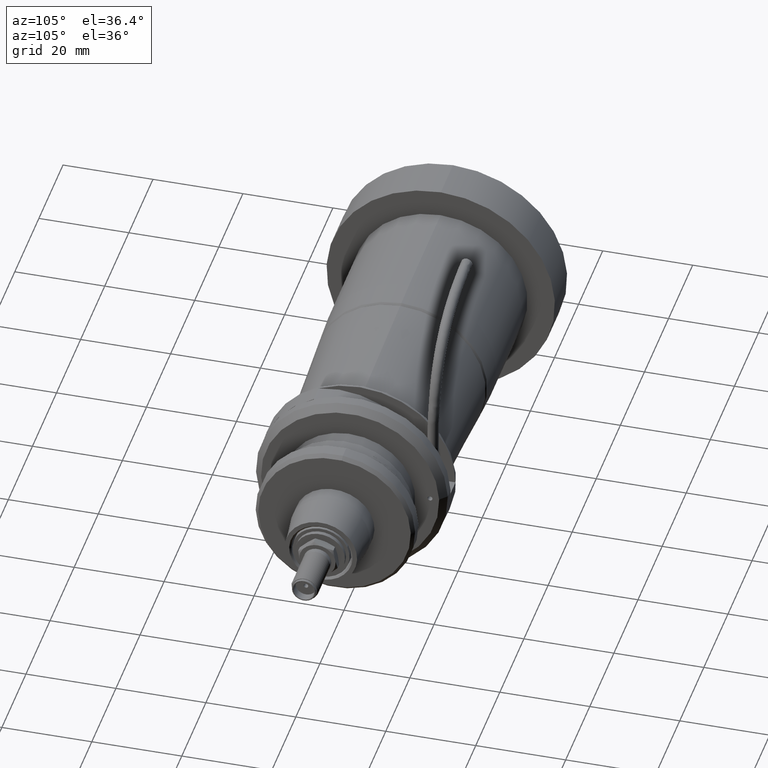
[diagram: clean part render]
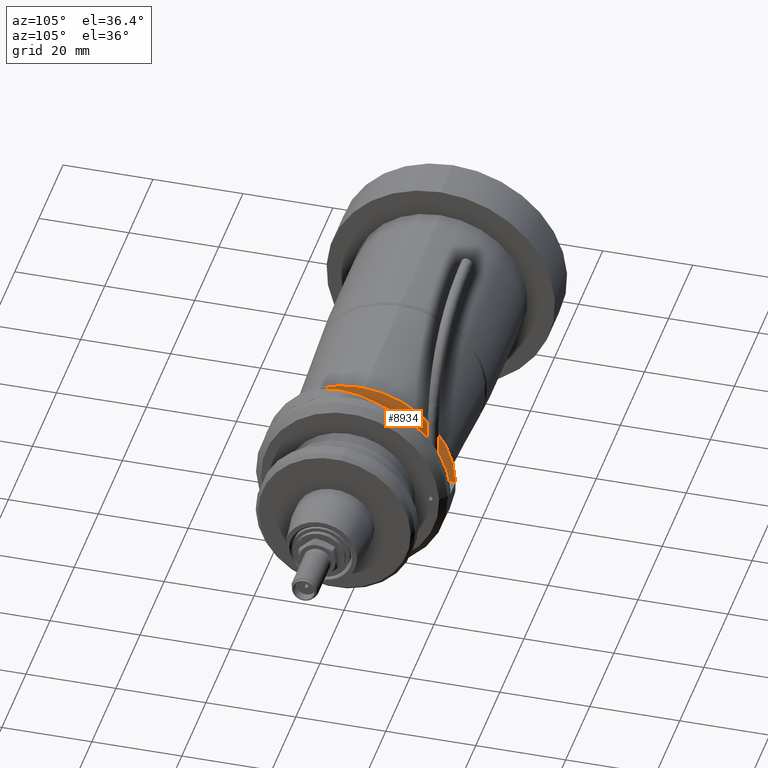
[diagram: same view with one face highlighted and labeled with its STEP entity id]
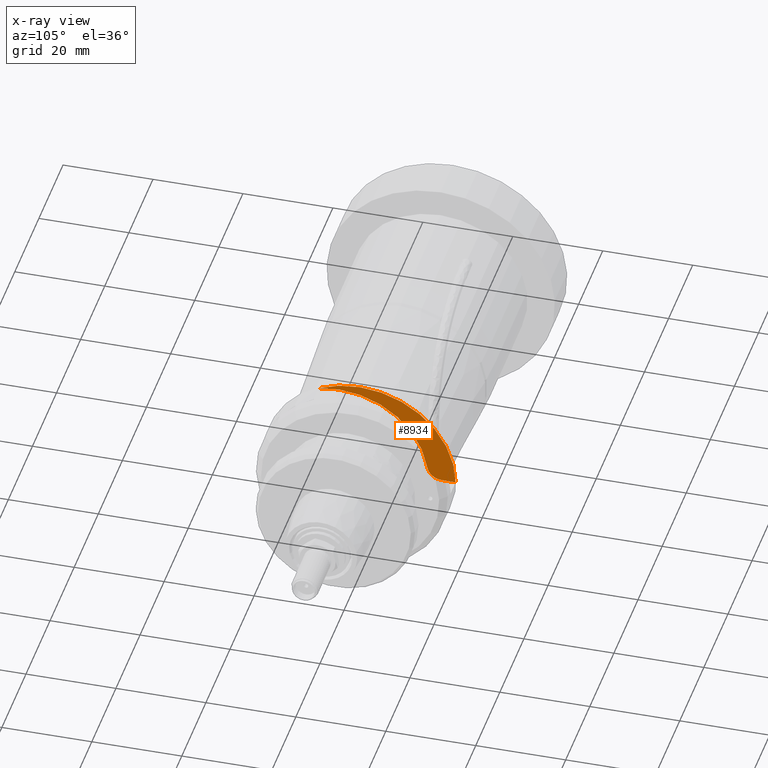
[diagram: x-ray of the same camera — body ghosted, the highlighted face saturated]
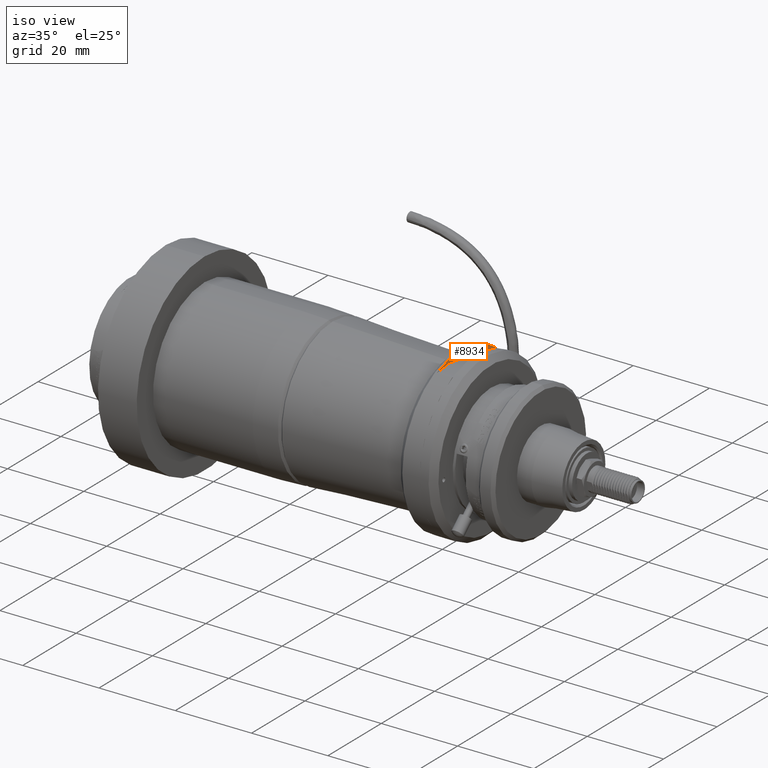
[diagram: same view with one face highlighted and labeled with its STEP entity id]
A machine part, auxiliary view. The second image highlights one B-rep face of the part: STEP entity #8934.
The next image is the same camera in x-ray: the body ghosted, the highlighted face saturated — about 0% of this face is hidden behind the body in this view.
A second angle (iso view) of the same face is appended — the face is thin or edge-on in the first view.
In plain terms, the highlighted planar face has unit normal (1, 0, 0).
Its self-contained STEP definition (entity closure, byte-faithful):
#632 = DIRECTION ( 'NONE',  ( -1.000000000000000000, -0.0000000000000000000, -0.0000000000000000000 ) ) ;
#1723 = CIRCLE ( 'NONE', #43522, 21.33599999999999900 ) ;
#3137 = LINE ( 'NONE', #53797, #43071 ) ;
#3436 = EDGE_CURVE ( 'NONE', #32696, #66127, #1723, .T. ) ;
#3970 = DIRECTION ( 'NONE',  ( 1.000000000000000000, 0.0000000000000000000, 0.0000000000000000000 ) ) ;
#8934 = ADVANCED_FACE ( 'NONE', ( #38929 ), #43245, .T. ) ;
#17063 = DIRECTION ( 'NONE',  ( 0.0000000000000000000, 1.000000000000000000, 0.0000000000000000000 ) ) ;
#19707 = CARTESIAN_POINT ( 'NONE',  ( 65.29614966030979400, 20.86445842648229700, -2.719187407137724200 ) ) ;
#24893 = AXIS2_PLACEMENT_3D ( 'NONE', #35884, #3970, #41103 ) ;
#25099 = DIRECTION ( 'NONE',  ( 0.0000000000000000000, 0.0000000000000000000, -1.000000000000000000 ) ) ;
#25122 = DIRECTION ( 'NONE',  ( 1.000000000000000000, 0.0000000000000000000, 0.0000000000000000000 ) ) ;
#25184 = CARTESIAN_POINT ( 'NONE',  ( 65.29614966030979400, -0.4715415735176992600, -2.719187407137724200 ) ) ;
#31554 = AXIS2_PLACEMENT_3D ( 'NONE', #32692, #632, #37937 ) ;
#32692 = CARTESIAN_POINT ( 'NONE',  ( 65.29614966030979400, -5.043541573517696700, -2.719187407137724200 ) ) ;
#32696 = VERTEX_POINT ( 'NONE', #19707 ) ;
#33495 = EDGE_LOOP ( 'NONE', ( #44078, #64231, #46158, #65670 ) ) ;
#35884 = CARTESIAN_POINT ( 'NONE',  ( 65.29614966030979400, 17.83338549285203800, 0.5828125928622756000 ) ) ;
#36409 = CIRCLE ( 'NONE', #31554, 19.81200000000000500 ) ;
#36477 = CARTESIAN_POINT ( 'NONE',  ( 65.29614966030979400, 14.56525305479921800, 0.1110983071479889100 ) ) ;
#37937 = DIRECTION ( 'NONE',  ( 0.0000000000000000000, 0.0000000000000000000, -1.000000000000000000 ) ) ;
#38929 = FACE_OUTER_BOUND ( 'NONE', #33495, .T. ) ;
#41025 = VERTEX_POINT ( 'NONE', #36477 ) ;
#41103 = DIRECTION ( 'NONE',  ( 0.0000000000000000000, 0.0000000000000000000, -1.000000000000000000 ) ) ;
#42180 = DIRECTION ( 'NONE',  ( 0.0000000000000000000, 0.0000000000000000000, -1.000000000000000000 ) ) ;
#42798 = DIRECTION ( 'NONE',  ( 1.000000000000000000, 0.0000000000000000000, 0.0000000000000000000 ) ) ;
#43071 = VECTOR ( 'NONE', #17063, 1000.000000000000000 ) ;
#43245 = PLANE ( 'NONE',  #62977 ) ;
#43522 = AXIS2_PLACEMENT_3D ( 'NONE', #25184, #25122, #25099 ) ;
#44078 = ORIENTED_EDGE ( 'NONE', *, *, #3436, .T. ) ;
#45543 = CARTESIAN_POINT ( 'NONE',  ( 65.29614966030979400, 17.83338549285203800, -2.719187407137724200 ) ) ;
#45787 = CARTESIAN_POINT ( 'NONE',  ( 65.29614966030979400, -0.4715415735176992600, -2.719187407137724200 ) ) ;
#46158 = ORIENTED_EDGE ( 'NONE', *, *, #63016, .T. ) ;
#52433 = CARTESIAN_POINT ( 'NONE',  ( 65.29614966030979400, -9.615541573517685200, 16.55805720924871600 ) ) ;
#53797 = CARTESIAN_POINT ( 'NONE',  ( 65.29614966030979400, 20.86445842648229700, -2.719187407137724200 ) ) ;
#57605 = CIRCLE ( 'NONE', #24893, 3.302000000000000000 ) ;
#60635 = VERTEX_POINT ( 'NONE', #45543 ) ;
#62977 = AXIS2_PLACEMENT_3D ( 'NONE', #45787, #42798, #42180 ) ;
#63016 = EDGE_CURVE ( 'NONE', #41025, #60635, #57605, .T. ) ;
#63987 = EDGE_CURVE ( 'NONE', #60635, #32696, #3137, .T. ) ;
#64231 = ORIENTED_EDGE ( 'NONE', *, *, #64377, .T. ) ;
#64377 = EDGE_CURVE ( 'NONE', #66127, #41025, #36409, .T. ) ;
#65670 = ORIENTED_EDGE ( 'NONE', *, *, #63987, .T. ) ;
#66127 = VERTEX_POINT ( 'NONE', #52433 ) ;